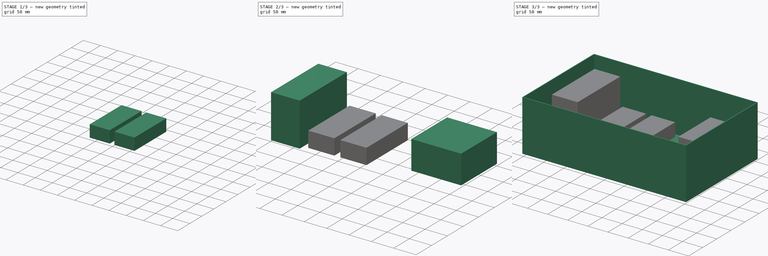
[diagram: build sequence overview — one tinted view per stage of 3, left to right]
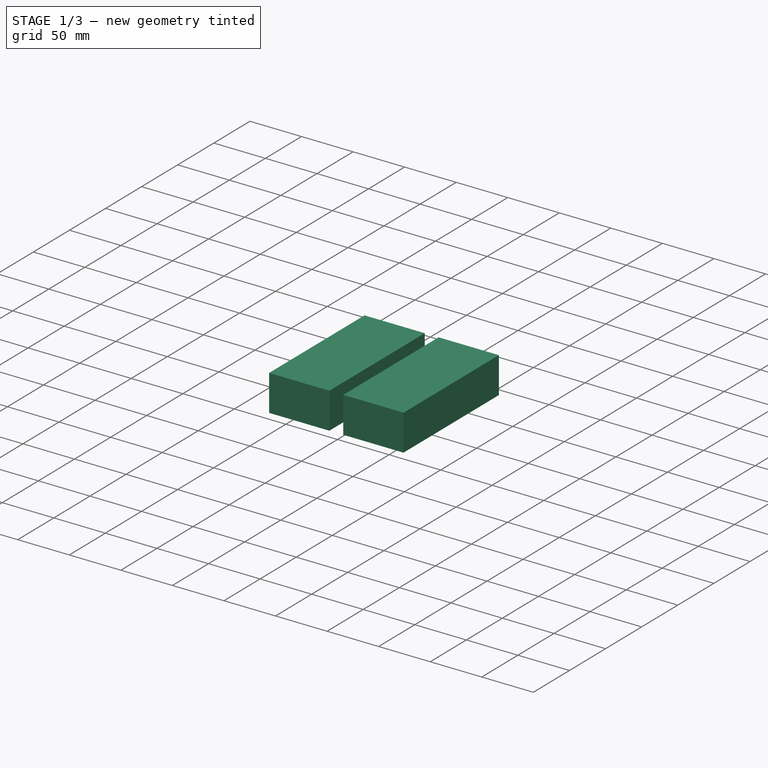
[diagram: stage 1 of 3 — iso view after this stage's code; geometry added in this stage tinted green]
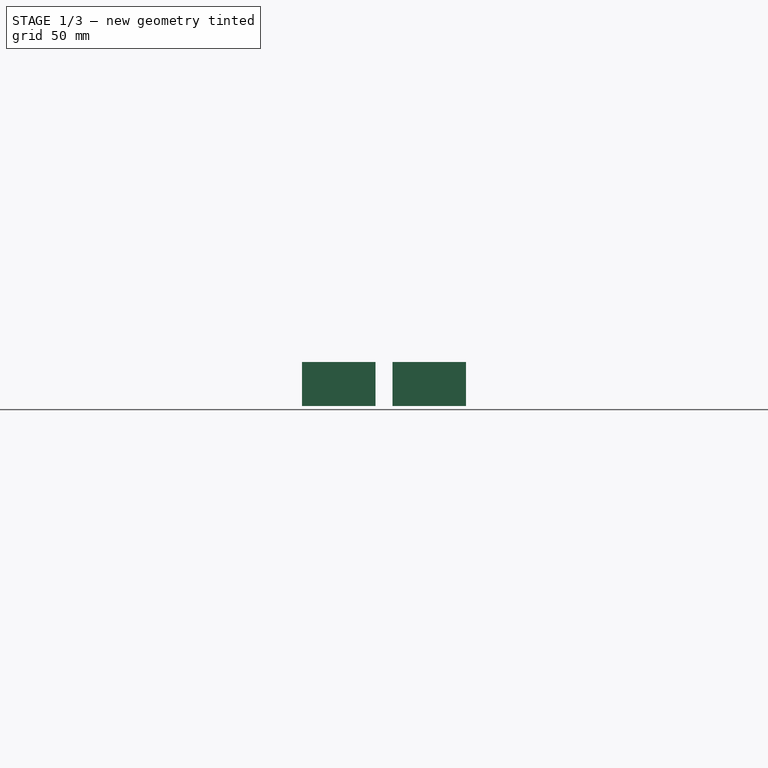
[diagram: stage 1 of 3 — front view after this stage's code; geometry added in this stage tinted green]
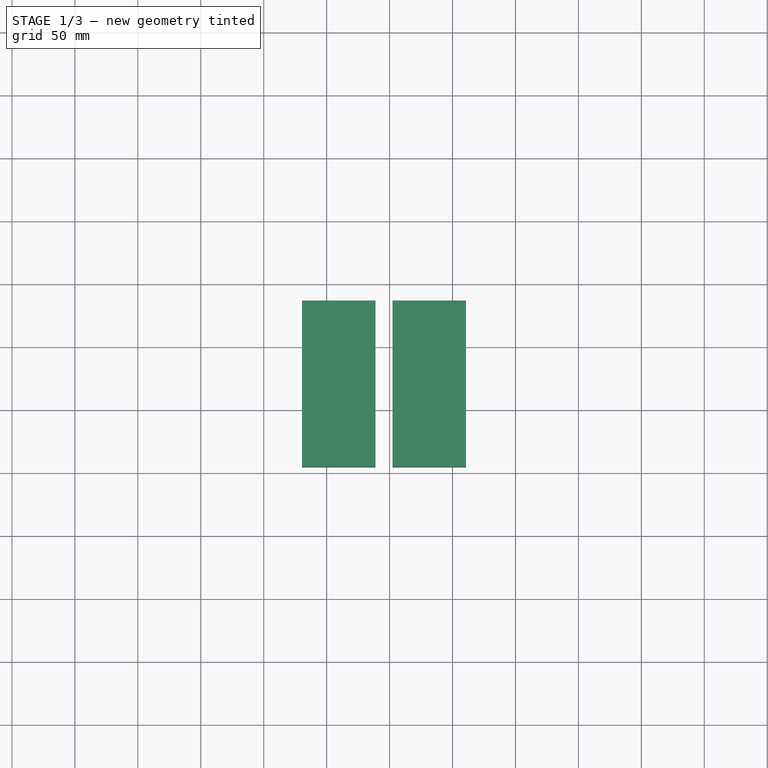
[diagram: stage 1 of 3 — top view after this stage's code; geometry added in this stage tinted green]
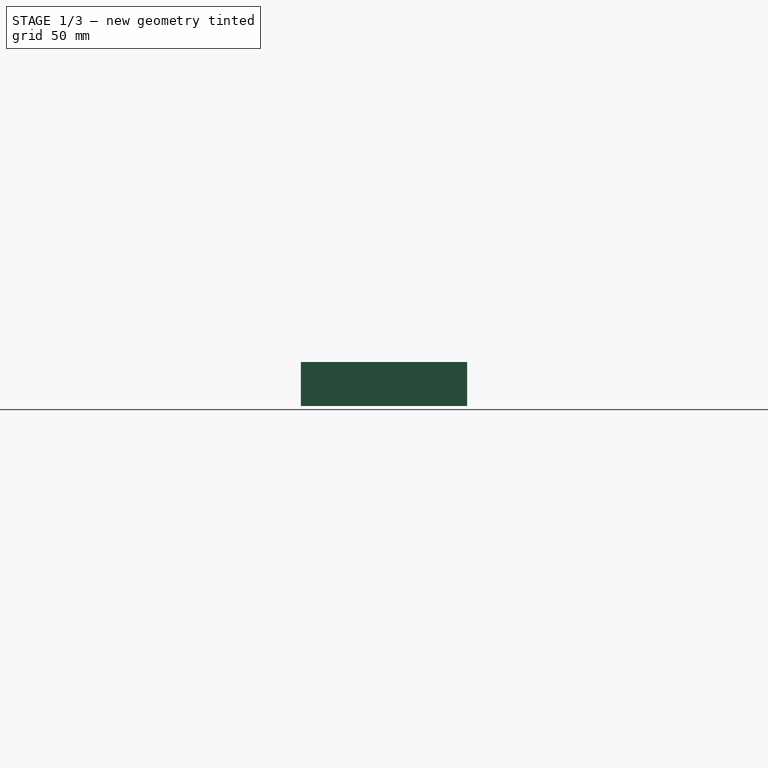
[diagram: stage 1 of 3 — right view after this stage's code; geometry added in this stage tinted green]
FCSTD DOCUMENT  (FreeCAD 0.15R4671 (Git))
Label: cotsmbcInternals
License: All rights reserved
LicenseURL: http://en.wikipedia.org/wiki/All_rights_reserved
objects: Sketcher::SketchObject×5, PartDesign::Pad×5, Part::Thickness×1
note: 16 computed .brp shape members not serialized (recipe doc carries the construction recipe); baked Part::Feature solids carry a one-line shape summary decoded from their .brp

FEATURE [Sketcher::SketchObject] Sketch003
  sketch-geometry (4):
    g0: LineSegment StartX=152.304 StartY=-13.1586 StartZ=0 EndX=210.724 EndY=-13.1586 EndZ=0
    g1: LineSegment StartX=210.724 StartY=-13.1586 StartZ=0 EndX=210.724 EndY=-145.239 EndZ=0
    g2: LineSegment StartX=210.724 StartY=-145.239 StartZ=0 EndX=152.304 EndY=-145.239 EndZ=0
    g3: LineSegment StartX=152.304 StartY=-145.239 StartZ=0 EndX=152.304 EndY=-13.1586 EndZ=0
  constraints (12):
    c: Coincident(g0,g1)
    c: Coincident(g1,g2)
    c: Coincident(g2,g3)
    c: Coincident(g3,g0)
    c: Horizontal(g0)
    c: Horizontal(g2)
    c: Vertical(g1)
    c: Vertical(g3)
    c: Equal(g3,g1)
    c: Equal(g2,g0)
    c: DistanceY(g1) = -132.08
    c: DistanceX(g2) = -58.42
FEATURE [Sketcher::SketchObject] Sketch004
  sketch-geometry (4):
    g0: LineSegment StartX=80.4002 StartY=-13.1586 StartZ=0 EndX=138.82 EndY=-13.1586 EndZ=0
    g1: LineSegment StartX=138.82 StartY=-13.1586 StartZ=0 EndX=138.82 EndY=-145.239 EndZ=0
    g2: LineSegment StartX=138.82 StartY=-145.239 StartZ=0 EndX=80.4002 EndY=-145.239 EndZ=0
    g3: LineSegment StartX=80.4002 StartY=-145.239 StartZ=0 EndX=80.4002 EndY=-13.1586 EndZ=0
  constraints (12):
    c: Coincident(g0,g1)
    c: Coincident(g1,g2)
    c: Coincident(g2,g3)
    c: Coincident(g3,g0)
    c: Horizontal(g0)
    c: Horizontal(g2)
    c: Vertical(g1)
    c: Vertical(g3)
    c: Equal(g3,g1)
    c: Equal(g2,g0)
    c: DistanceY(g1) = -132.08
    c: DistanceX(g2) = -58.42
FEATURE [PartDesign::Pad] Pad003  label="tenergyCharger"
  Length = 35.02
  Length2 = 100
  Sketch = -> Sketch003
  Type = 0
FEATURE [PartDesign::Pad] Pad004  label="brixAdapterFacsimile"
  Length = 35.02
  Length2 = 100
  Sketch = -> Sketch004
  Type = 0
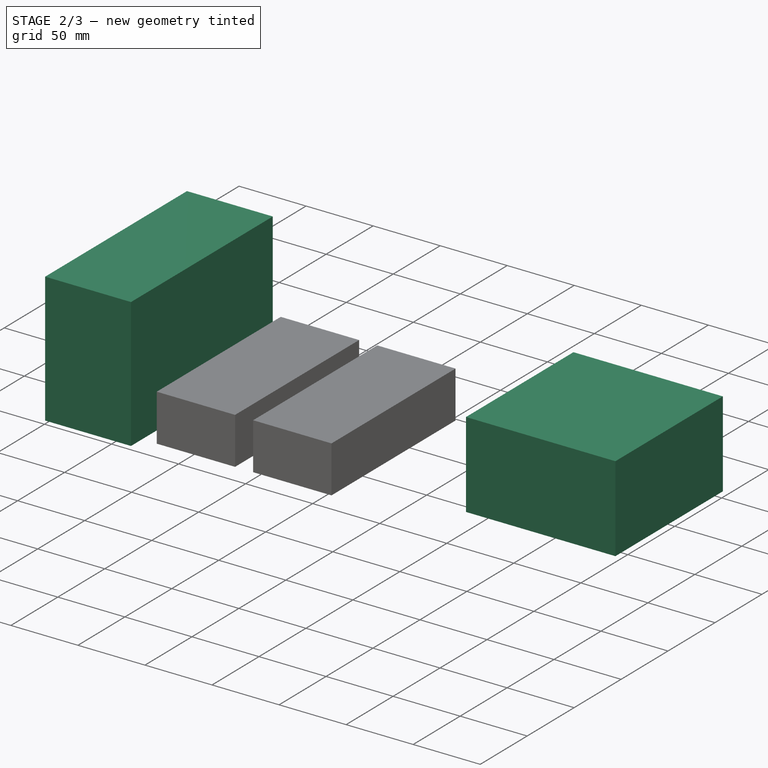
[diagram: stage 2 of 3 — iso view after this stage's code; geometry added in this stage tinted green]
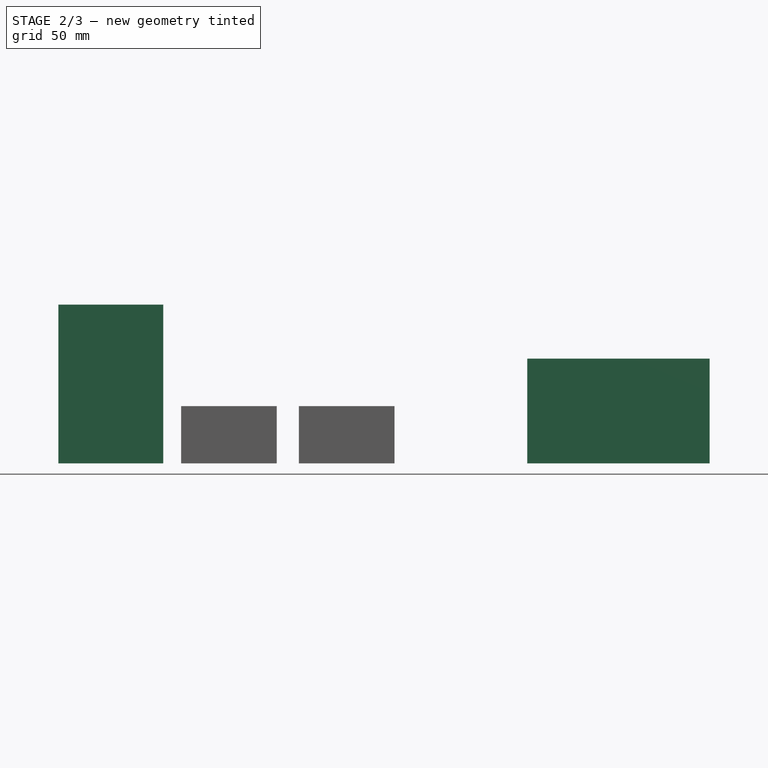
[diagram: stage 2 of 3 — front view after this stage's code; geometry added in this stage tinted green]
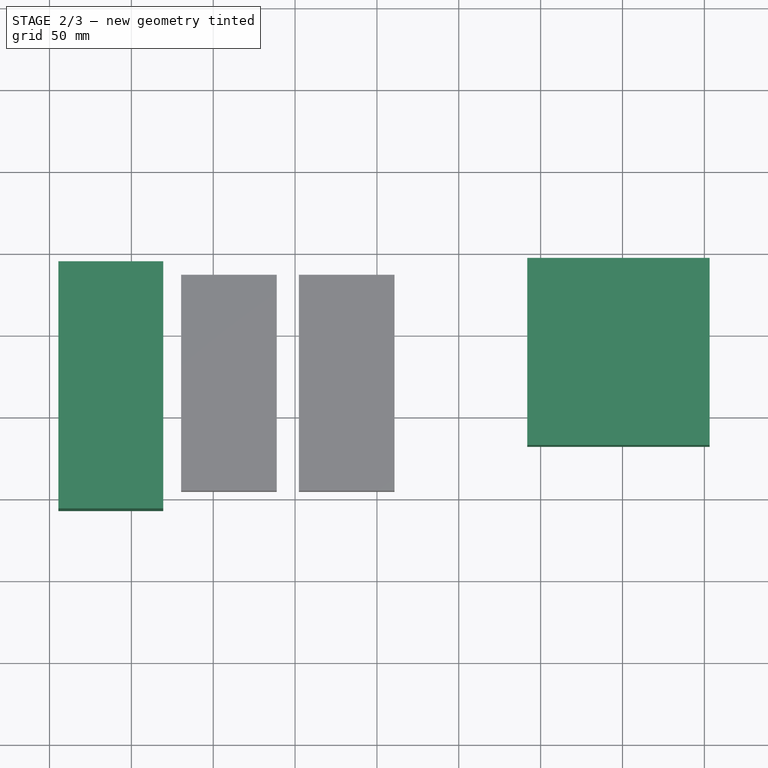
[diagram: stage 2 of 3 — top view after this stage's code; geometry added in this stage tinted green]
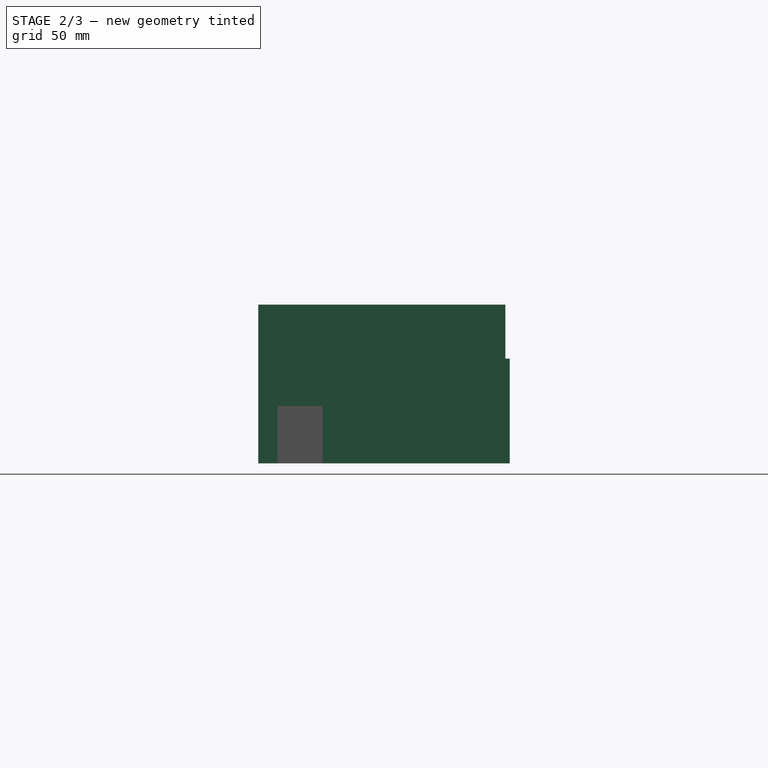
[diagram: stage 2 of 3 — right view after this stage's code; geometry added in this stage tinted green]
FEATURE [Sketcher::SketchObject] Sketch001
  sketch-geometry (4):
    g0: LineSegment StartX=291.791 StartY=-3.35 StartZ=0 EndX=403.191 EndY=-3.35 EndZ=0
    g1: LineSegment StartX=403.191 StartY=-3.35 StartZ=0 EndX=403.191 EndY=-117.75 EndZ=0
    g2: LineSegment StartX=403.191 StartY=-117.75 StartZ=0 EndX=291.791 EndY=-117.75 EndZ=0
    g3: LineSegment StartX=291.791 StartY=-117.75 StartZ=0 EndX=291.791 EndY=-3.35 EndZ=0
  constraints (12):
    c: Coincident(g0,g1)
    c: Coincident(g1,g2)
    c: Coincident(g2,g3)
    c: Coincident(g3,g0)
    c: Horizontal(g0)
    c: Horizontal(g2)
    c: Vertical(g1)
    c: Vertical(g3)
    c: Equal(g2,g0)
    c: Equal(g1,g3)
    c: DistanceY(g1) = -114.4
    c: DistanceX(g2) = -111.4
FEATURE [PartDesign::Pad] Pad001  label="brix"
  Length = 64
  Length2 = 100
  Sketch = -> Sketch001
  Type = 0
FEATURE [Sketcher::SketchObject] Sketch002
  sketch-geometry (4):
    g0: LineSegment StartX=5.43982 StartY=-5.99782 StartZ=0 EndX=69.4398 EndY=-5.99782 EndZ=0
    g1: LineSegment StartX=69.4398 StartY=-5.99782 StartZ=0 EndX=69.4398 EndY=-156.998 EndZ=0
    g2: LineSegment StartX=69.4398 StartY=-156.998 StartZ=0 EndX=5.43982 EndY=-156.998 EndZ=0
    g3: LineSegment StartX=5.43982 StartY=-156.998 StartZ=0 EndX=5.43982 EndY=-5.99782 EndZ=0
  constraints (12):
    c: Coincident(g0,g1)
    c: Coincident(g1,g2)
    c: Coincident(g2,g3)
    c: Coincident(g3,g0)
    c: Horizontal(g0)
    c: Horizontal(g2)
    c: Vertical(g1)
    c: Vertical(g3)
    c: Equal(g2,g0)
    c: Equal(g1,g3)
    c: DistanceY(g3) = 151
    c: DistanceX(g2) = -64
FEATURE [PartDesign::Pad] Pad002  label="batteryUpright"
  Length = 97
  Length2 = 100
  Sketch = -> Sketch002
  Type = 0
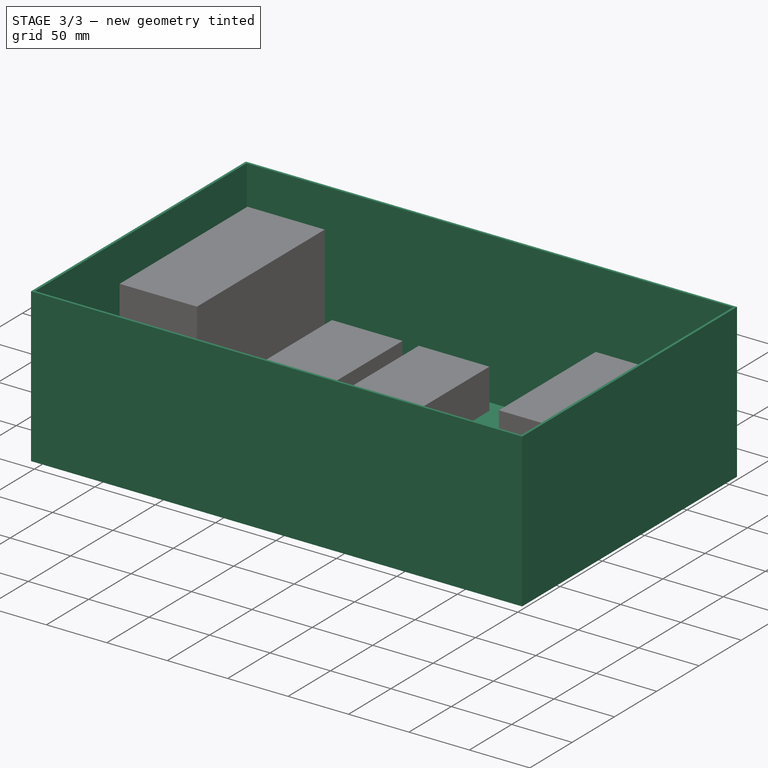
[diagram: stage 3 of 3 — iso view after this stage's code; geometry added in this stage tinted green]
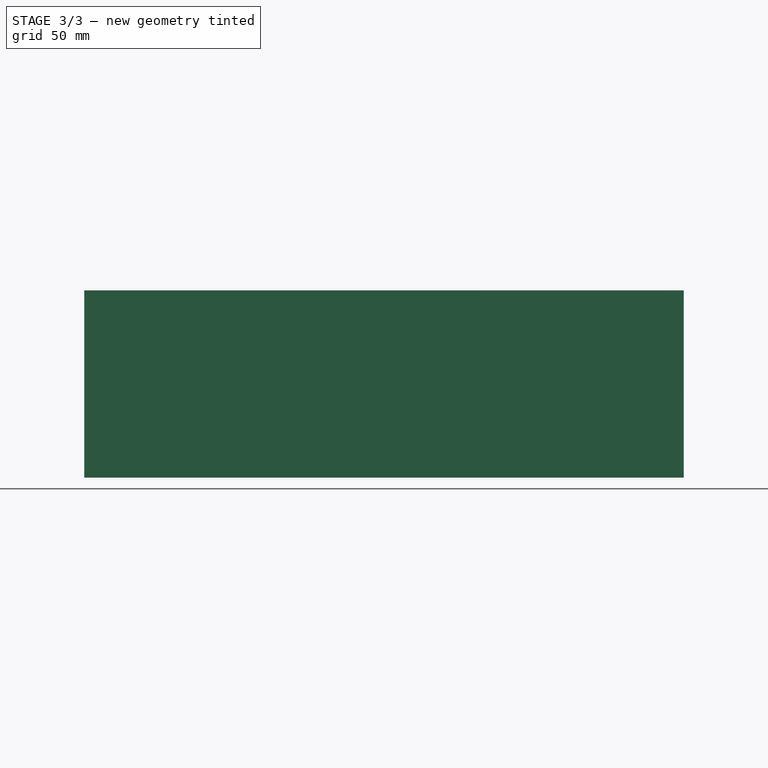
[diagram: stage 3 of 3 — front view after this stage's code; geometry added in this stage tinted green]
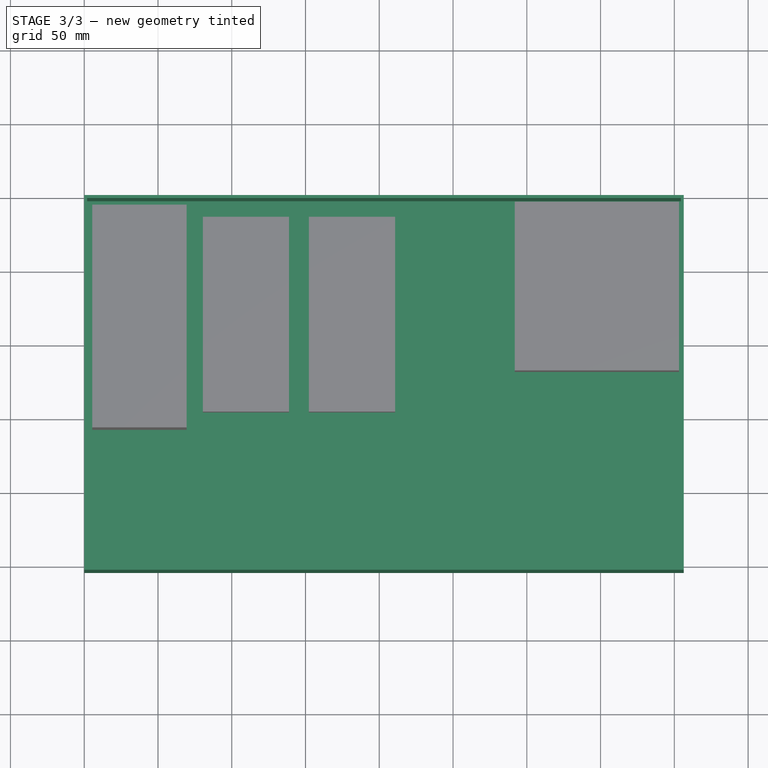
[diagram: stage 3 of 3 — top view after this stage's code; geometry added in this stage tinted green]
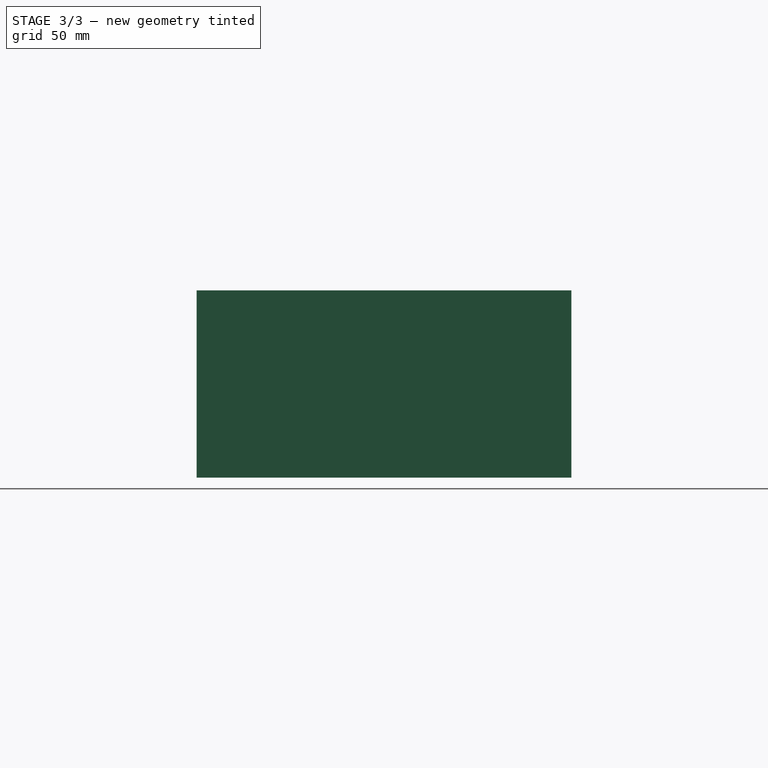
[diagram: stage 3 of 3 — right view after this stage's code; geometry added in this stage tinted green]
FEATURE [Sketcher::SketchObject] Sketch
  sketch-geometry (4):
    g0: LineSegment StartX=-5.2e-11 StartY=3.3e-11 StartZ=0 EndX=406.4 EndY=3.3e-11 EndZ=0
    g1: LineSegment StartX=406.4 StartY=3.3e-11 StartZ=0 EndX=406.4 EndY=-254 EndZ=0
    g2: LineSegment StartX=406.4 StartY=-254 StartZ=0 EndX=-5.2e-11 EndY=-254 EndZ=0
    g3: LineSegment StartX=-5.2e-11 StartY=-254 StartZ=0 EndX=-5.2e-11 EndY=3.3e-11 EndZ=0
  constraints (8):
    c: Coincident(g0,g1)
    c: Coincident(g1,g2)
    c: Coincident(g2,g3)
    c: Coincident(g3,g0)
    c: Equal(g0,g2)
    c: Equal(g1,g3)
    c: DistanceY(g1) = -254
    c: DistanceX(g0) = 406.4
FEATURE [PartDesign::Pad] Pad
  Length = 127
  Length2 = 100
  Sketch = -> Sketch
  Type = 0
FEATURE [Part::Thickness] Thickness  label="case"
  Faces = -> Pad [Face6]
  Intersection = false
  Join = 0
  Mode = 0
  SelfIntersection = false
  Value = -2
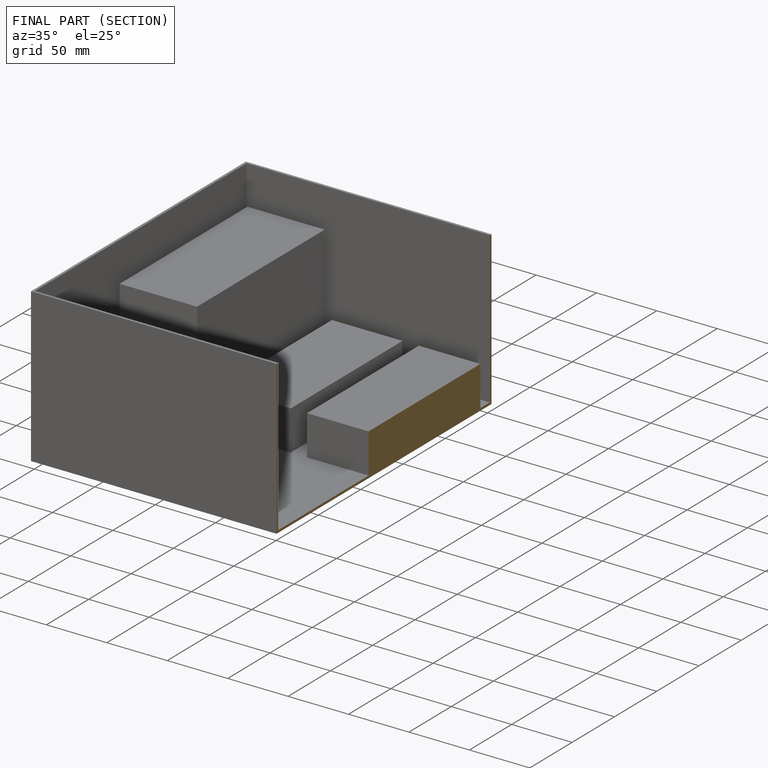
[diagram: finished part — half-section view (interior)]
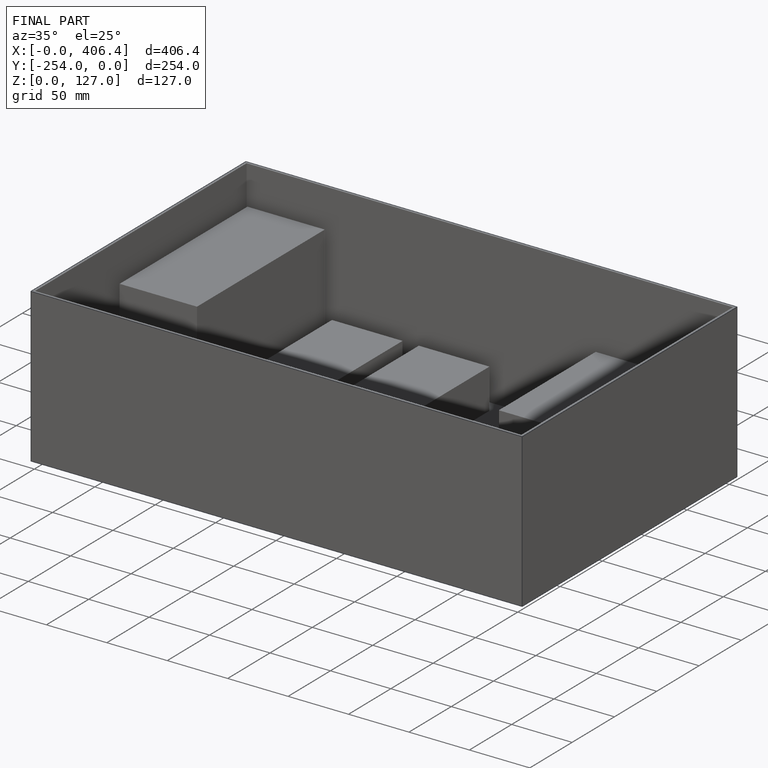
[diagram: finished part — iso view with bounding-box wireframe]
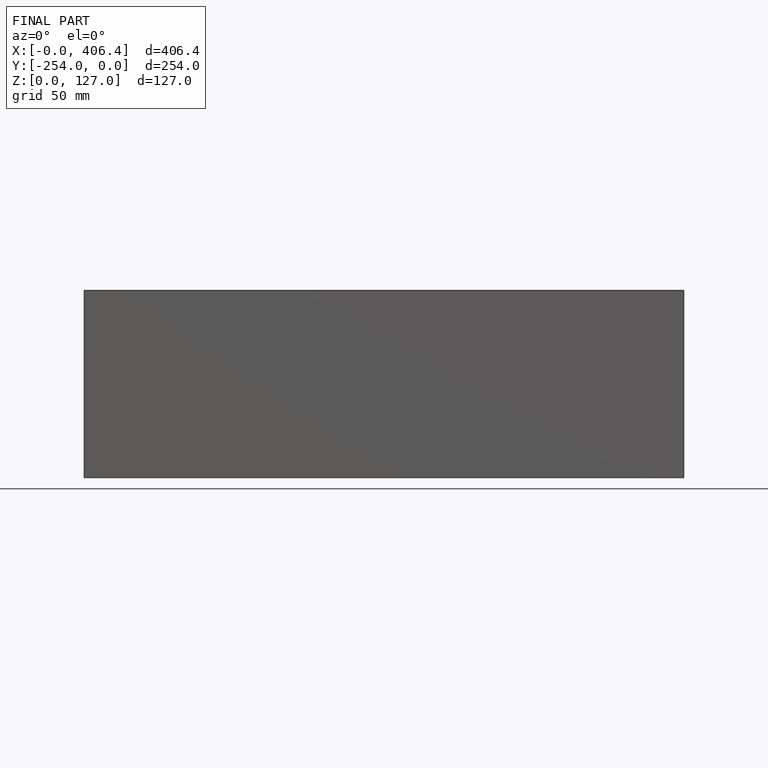
[diagram: finished part — front view with bounding-box wireframe]
